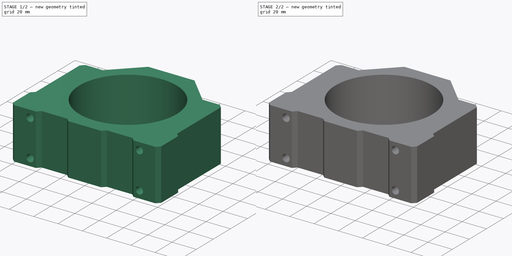
[diagram: build sequence overview — one tinted view per stage of 2, left to right]
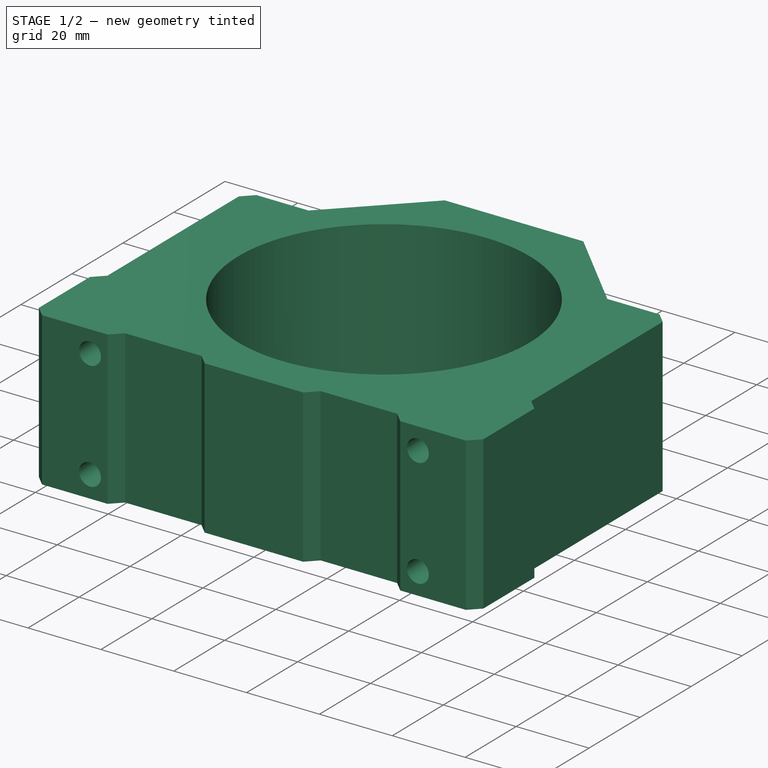
[diagram: stage 1 of 2 — iso view after this stage's code; geometry added in this stage tinted green]
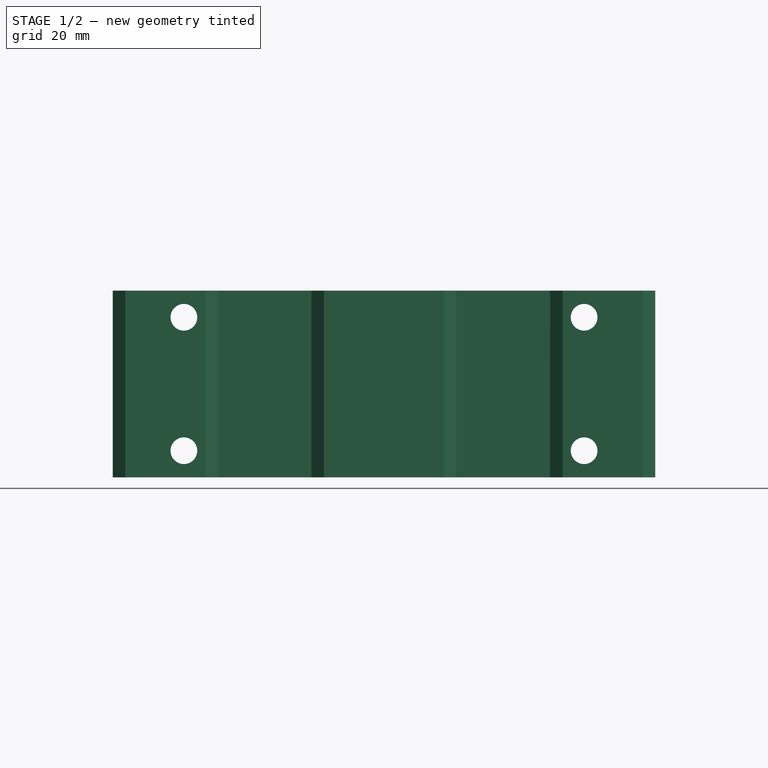
[diagram: stage 1 of 2 — front view after this stage's code; geometry added in this stage tinted green]
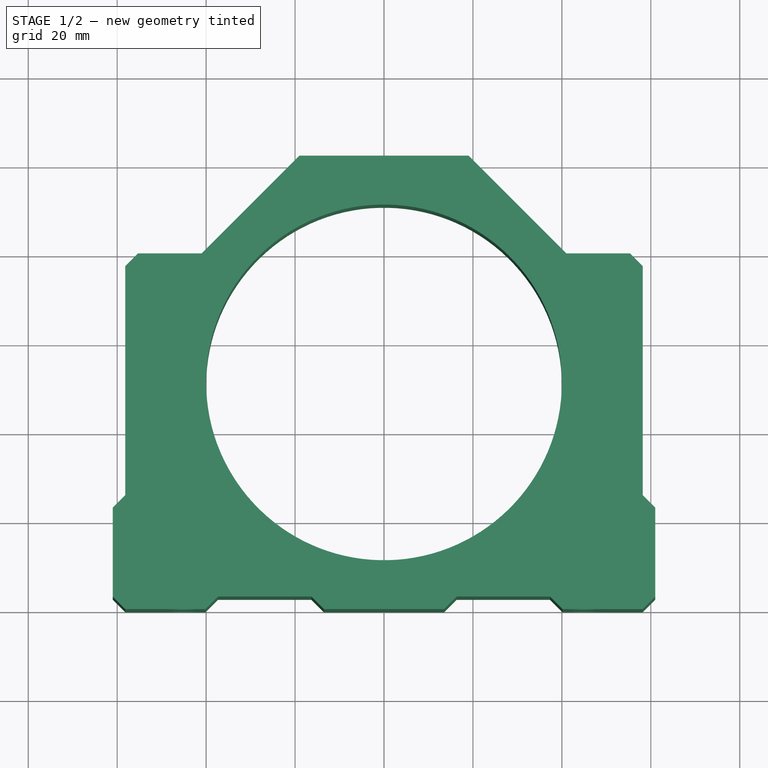
[diagram: stage 1 of 2 — top view after this stage's code; geometry added in this stage tinted green]
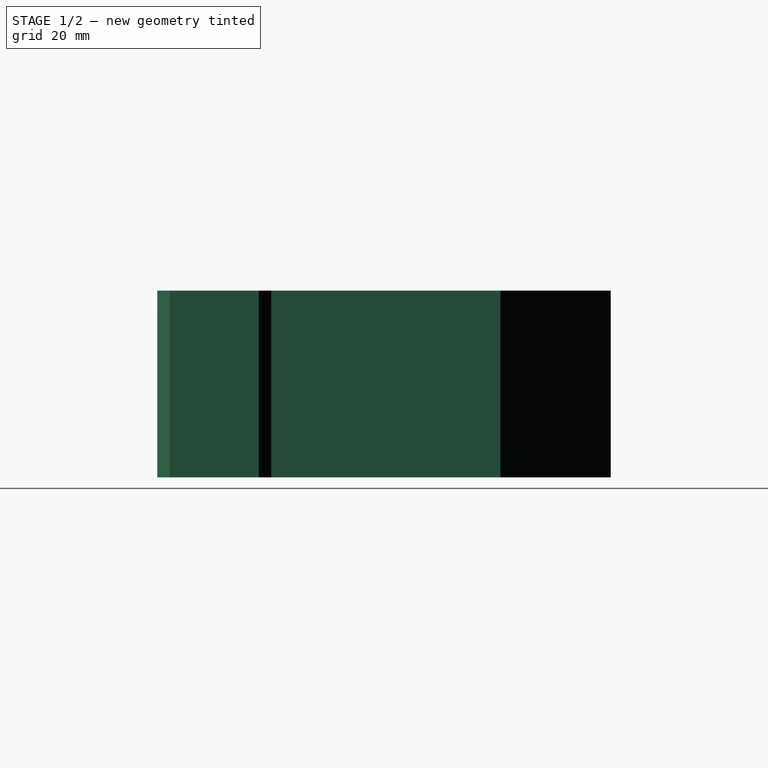
[diagram: stage 1 of 2 — right view after this stage's code; geometry added in this stage tinted green]
FCSTD DOCUMENT  (FreeCAD 1.0R39319 (Git))
Label: 80mm-motor-holder
License: All rights reserved
LicenseURL: http://en.wikipedia.org/wiki/All_rights_reserved
objects: Sketcher::SketchObject×3, PartDesign::Pad×1, PartDesign::Hole×1, PartDesign::Pocket×1, PartDesign::Chamfer×1, PartDesign::Body×1, App::Part×1
note: 19 computed .brp shape members not serialized (recipe doc carries the construction recipe); baked Part::Feature solids carry a one-line shape summary decoded from their .brp

FEATURE [Sketcher::SketchObject] Sketch
  ArcFitTolerance = 1e-06
  AttachmentSupport = -> [XY_Plane]
  FullyConstrained = false
  MakeInternals = false
  MapMode = 5
  sketch-geometry (33):
    g0: LineSegment [constr] StartX=-61 StartY=0 StartZ=0 EndX=61 EndY=0 EndZ=0
    g1: LineSegment [constr] StartX=61 StartY=0 StartZ=0 EndX=61 EndY=102 EndZ=0
    g2: LineSegment [constr] StartX=61 StartY=102 StartZ=0 EndX=-61 EndY=102 EndZ=0
    g3: LineSegment [constr] StartX=-61 StartY=102 StartZ=0 EndX=-61 EndY=0 EndZ=0
    g4: LineSegment StartX=0 StartY=0 StartZ=0 EndX=-13.5147 EndY=0 EndZ=0
    g5: LineSegment StartX=-13.5147 StartY=0 StartZ=0 EndX=-16.3431 EndY=2.82843 EndZ=0
    g6: LineSegment StartX=-16.3431 StartY=2.82843 StartZ=0 EndX=-37.3431 EndY=2.82843 EndZ=0
    g7: LineSegment StartX=-37.3431 StartY=2.82843 StartZ=0 EndX=-40.1716 EndY=0 EndZ=0
    g8: LineSegment StartX=-40.1716 StartY=0 StartZ=0 EndX=-58.1716 EndY=0 EndZ=0
    g9: LineSegment StartX=-58.1716 StartY=0 StartZ=0 EndX=-61 EndY=2.82843 EndZ=0
    g10: LineSegment StartX=-61 StartY=2.82843 StartZ=0 EndX=-61 EndY=22.8284 EndZ=0
    g11: LineSegment StartX=-61 StartY=22.8284 StartZ=0 EndX=-58.1716 EndY=25.6569 EndZ=0
    g12: LineSegment StartX=-58.1716 StartY=25.6569 StartZ=0 EndX=-58.1716 EndY=77.1716 EndZ=0
    g13: LineSegment StartX=-58.1716 StartY=77.1716 StartZ=0 EndX=-55.3431 EndY=80 EndZ=0
    g14: LineSegment StartX=-55.3431 StartY=80 StartZ=0 EndX=-41 EndY=80 EndZ=0
    g15: LineSegment StartX=-41 StartY=80 StartZ=0 EndX=-19 EndY=102 EndZ=0
    g16: LineSegment StartX=-19 StartY=102 StartZ=0 EndX=0 EndY=102 EndZ=0
    g17: LineSegment [constr] StartX=61 StartY=51 StartZ=0 EndX=-61 EndY=51 EndZ=0
    g18: LineSegment [constr] StartX=61 StartY=102 StartZ=0 EndX=61 EndY=0 EndZ=0
    g19: LineSegment StartX=0 StartY=0 StartZ=0 EndX=13.5147 EndY=0 EndZ=0
    g20: LineSegment StartX=13.5147 StartY=0 StartZ=0 EndX=16.3431 EndY=2.82843 EndZ=0
    g21: LineSegment StartX=16.3431 StartY=2.82843 StartZ=0 EndX=37.3431 EndY=2.82843 EndZ=0
    g22: LineSegment StartX=37.3431 StartY=2.82843 StartZ=0 EndX=40.1716 EndY=0 EndZ=0
    g23: LineSegment StartX=40.1716 StartY=0 StartZ=0 EndX=58.1716 EndY=0 EndZ=0
    g24: LineSegment StartX=58.1716 StartY=0 StartZ=0 EndX=61 EndY=2.82843 EndZ=0
    g25: LineSegment StartX=61 StartY=2.82843 StartZ=0 EndX=61 EndY=22.8284 EndZ=0
    g26: LineSegment StartX=61 StartY=22.8284 StartZ=0 EndX=58.1716 EndY=25.6569 EndZ=0
    g27: LineSegment StartX=58.1716 StartY=25.6569 StartZ=0 EndX=58.1716 EndY=77.1716 EndZ=0
    g28: LineSegment StartX=58.1716 StartY=77.1716 StartZ=0 EndX=55.3431 EndY=80 EndZ=0
    g29: LineSegment StartX=55.3431 StartY=80 StartZ=0 EndX=41 EndY=80 EndZ=0
    g30: LineSegment StartX=41 StartY=80 StartZ=0 EndX=19 EndY=102 EndZ=0
    g31: LineSegment StartX=19 StartY=102 StartZ=0 EndX=0 EndY=102 EndZ=0
    g32: Circle CenterX=-2.6e-15 CenterY=51 CenterZ=0 NormalX=0 NormalY=0 NormalZ=1 AngleXU=0 Radius=40
  constraints (82):
    c: Coincident(g0,g1)
    c: Coincident(g1,g2)
    c: Coincident(g2,g3)
    c: Coincident(g3,g0)
    c: Horizontal(g0)
    c: Horizontal(g2)
    c: Vertical(g1)
    c: Vertical(g3)
    c: Distance(g1,g3) = 122
    c: Distance(g0,g2) = 102
    c: Coincident(g4,g-1)
    c: Horizontal(g4)
    c: Coincident(g5,g4)
    c: Coincident(g6,g5)
    c: Horizontal(g6)
    c: Coincident(g6,g7)
    c: PointOnObject(g7,g0)
    c: Coincident(g7,g8)
    c: PointOnObject(g8,g0)
    c: Coincident(g8,g9)
    c: Coincident(g9,g10)
    c: Vertical(g10)
    c: Coincident(g10,g11)
    c: Coincident(g11,g12)
    c: Vertical(g12)
    c: Coincident(g12,g13)
    c: Coincident(g13,g14)
    c: Horizontal(g14)
    c: Coincident(g14,g15)
    c: Coincident(g15,g16)
    c: PointOnObject(g16,g-2)
    c: Horizontal(g16)
    c: Angle(g5,g0) = 0.785398
    c: Angle(g0,g7) = 0.785398
    c: Angle(g9,g0) = 0.785398
    c: Angle(g11,g10) = 0.785398
    c: Angle(g12,g13) = 2.35619
    c: Angle(g15,g14) = 2.35619
    c: PointOnObject(g0,g-1)
    c: PointOnObject(g9,g3)
    c: Distance(g-2,g3) = 61
    c: PointOnObject(g15,g2)
    c: Symmetric(g1,g1,g17)
    c: Symmetric(g3,g3,g17)
    c: DistanceX(g16,g16) = 19
    c: DistanceX(g14,g-1) = 41
    c: Equal(g9,g7)
    c: Distance(g9,g9) = 4
    c: Equal(g9,g11)
    c: Equal(g11,g13)
    c: DistanceX(g8,g8) = 18
    c: DistanceX(g6,g6) = 21
    c: DistanceY(g10,g10) = 20
    c: Vertical(g18)
    c: Horizontal(g19)
    c: Coincident(g20,g19)
    c: Coincident(g21,g20)
    c: Horizontal(g21)
    c: Coincident(g21,g22)
    c: Coincident(g22,g23)
    c: Coincident(g23,g24)
    c: Coincident(g24,g25)
    c: Vertical(g25)
    c: Coincident(g25,g26)
    c: Coincident(g26,g27)
    c: Vertical(g27)
    c: Coincident(g27,g28)
    c: Coincident(g28,g29)
    c: Horizontal(g29)
    c: Coincident(g29,g30)
    c: Coincident(g30,g31)
    c: Horizontal(g31)
    c: Angle(g26,g25) = -0.785398
    c: Angle(g27,g28) = -2.35619
    c: Angle(g30,g29) = -2.35619
    c: PointOnObject(g24,g18)
    c: Equal(g24,g22)
    c: Distance(g24,g24) = 4
    c: Equal(g24,g26)
    c: Equal(g26,g28)
    c: Diameter(g32) = 80
    c: Symmetric(g17,g17,g32)
FEATURE [PartDesign::Pad] Pad
  Direction = (0,0,1)
  Length = 42
  Length2 = 10
  Profile = -> Sketch
  ReferenceAxis = -> Sketch [N_Axis]
  Suppressed = false
  Type = 0
FEATURE [Sketcher::SketchObject] Sketch001
  ArcFitTolerance = 1e-06
  AttachmentSupport = -> [Pad]
  ExternalGeometry = -> [Pad]
  FullyConstrained = true
  MakeInternals = false
  MapMode = 5
  Placement = pos=(0,80,0) rot=(0,0.707107,0.707107;3.14159rad)
  sketch-geometry (4):
    g0: Circle CenterX=-45 CenterY=6 CenterZ=0 NormalX=0 NormalY=0 NormalZ=1 AngleXU=0 Radius=3.35
    g1: Circle CenterX=-45 CenterY=36 CenterZ=0 NormalX=0 NormalY=0 NormalZ=1 AngleXU=0 Radius=3.35
    g2: Circle CenterX=45 CenterY=6 CenterZ=0 NormalX=0 NormalY=0 NormalZ=1 AngleXU=0 Radius=3.35
    g3: Circle CenterX=45 CenterY=36 CenterZ=0 NormalX=0 NormalY=0 NormalZ=1 AngleXU=0 Radius=3.35
  constraints (12):
    c: Diameter(g0) = 6.7
    c: Diameter(g1) = 6.7
    c: Vertical(g0,g1)
    c: Distance(g1,g-2) = 45
    c: DistanceY(g0,g1) = 30
    c: DistanceY(g1,g-3) = 6
    c: Diameter(g2) = 6.7
    c: Diameter(g3) = 6.7
    c: DistanceX(g1,g3) = 90
    c: Horizontal(g0,g2)
    c: Horizontal(g1,g3)
    c: Vertical(g2,g3)
FEATURE [PartDesign::Hole] Hole
  BaseFeature = -> Pad
  CustomThreadClearance = 0
  Depth = 332.239
  DepthType = 1
  Diameter = 6
  DrillForDepth = false
  DrillPoint = 1
  DrillPointAngle = 118
  HoleCutCountersinkAngle = 90
  HoleCutCustomValues = false
  HoleCutDepth = 0
  HoleCutDiameter = 6.1
  HoleCutType = 0
  ModelThread = false
  Profile = -> Sketch001
  Suppressed = false
  Tapered = false
  TaperedAngle = 90
  ThreadClass = 0
  ThreadDepth = 332.239
  ThreadDepthType = 0
  ThreadDirection = 0
  ThreadFit = 0
  ThreadSize = 0
  ThreadType = 0
  Threaded = false
  UseCustomThreadClearance = false
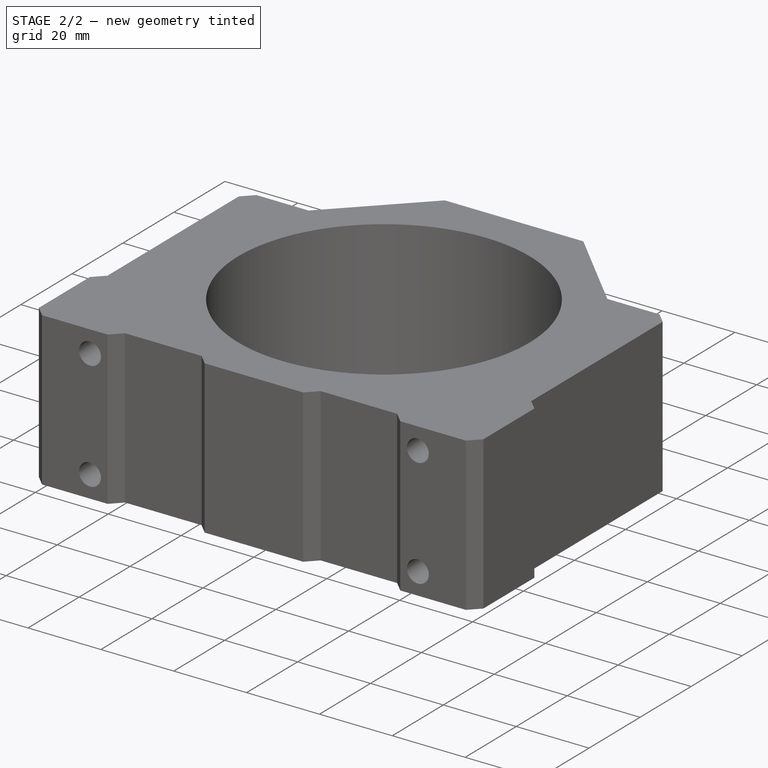
[diagram: stage 2 of 2 — iso view after this stage's code; geometry added in this stage tinted green]
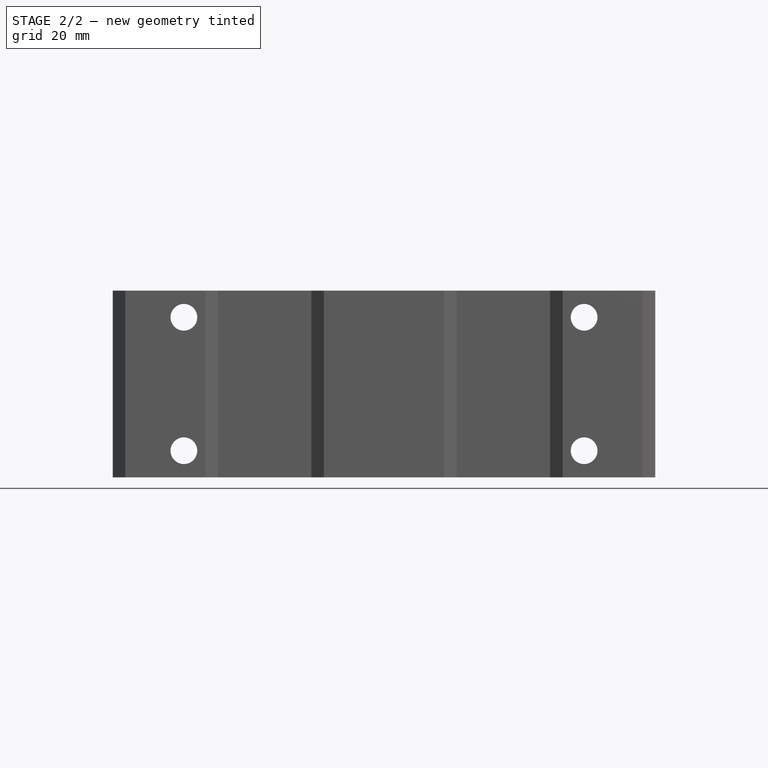
[diagram: stage 2 of 2 — front view after this stage's code; geometry added in this stage tinted green]
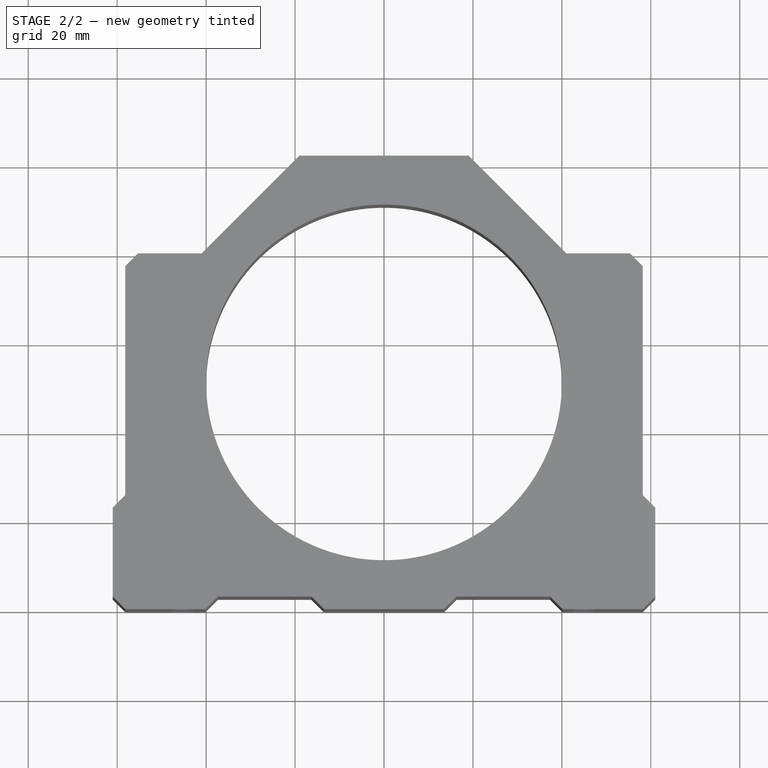
[diagram: stage 2 of 2 — top view after this stage's code; geometry added in this stage tinted green]
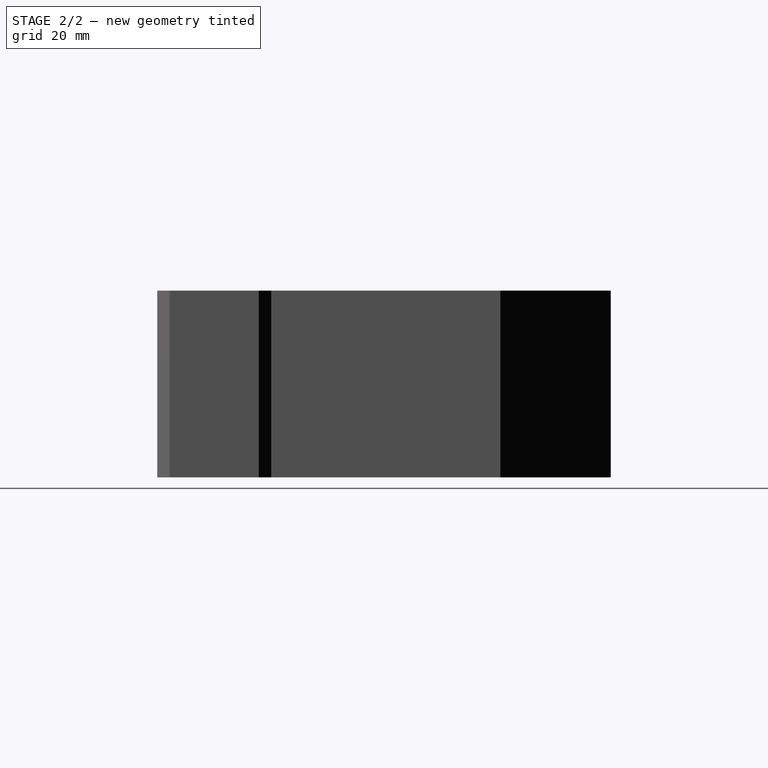
[diagram: stage 2 of 2 — right view after this stage's code; geometry added in this stage tinted green]
FEATURE [Sketcher::SketchObject] Sketch002
  ArcFitTolerance = 1e-06
  AttachmentSupport = -> [Hole]
  ExternalGeometry = -> [Hole]
  FullyConstrained = false
  MakeInternals = false
  MapMode = 5
  Placement = pos=(0,0,0) rot=(1,0,0;3.14159rad)
  sketch-geometry (4):
    g0: LineSegment StartX=61.5784 StartY=-54 StartZ=0 EndX=61.5784 EndY=-52 EndZ=0
    g1: LineSegment StartX=61.5784 StartY=-52 StartZ=0 EndX=31.2793 EndY=-52 EndZ=0
    g2: LineSegment StartX=31.2793 StartY=-52 StartZ=0 EndX=31.2793 EndY=-54 EndZ=0
    g3: LineSegment StartX=31.2793 StartY=-54 StartZ=0 EndX=61.5784 EndY=-54 EndZ=0
  constraints (10):
    c: Coincident(g0,g1)
    c: Coincident(g1,g2)
    c: Coincident(g2,g3)
    c: Coincident(g3,g0)
    c: Vertical(g0)
    c: Vertical(g2)
    c: Horizontal(g1)
    c: Horizontal(g3)
    c: Distance(g3,g1) = 2
    c: Distance(g-3,g3) = 26
FEATURE [PartDesign::Pocket] Pocket
  BaseFeature = -> Hole
  Direction = (0,0,1)
  Length = 5
  Length2 = 5
  Profile = -> Sketch002
  ReferenceAxis = -> Sketch002 [N_Axis]
  Suppressed = false
  Type = 2
FEATURE [PartDesign::Chamfer] Chamfer
  Angle = 45
  Base = -> Hole [Edge78,Edge79,Edge71,Edge72]
  BaseFeature = -> Hole
  ChamferType = 0
  FlipDirection = false
  Size = 0.5
  Size2 = 1
  SupportTransform = false
  Suppressed = false
  UseAllEdges = false
FEATURE [PartDesign::Body] Body
  AllowCompound = false
  Group = -> [Sketch,Pad,Sketch001,Hole,Sketch002,Pocket,Chamfer]
  Origin = -> Origin
  Tip = -> Chamfer
FEATURE [App::Part] Part  label="80mm-motor-holder"
  Group = -> [Body]
  Origin = -> Origin001
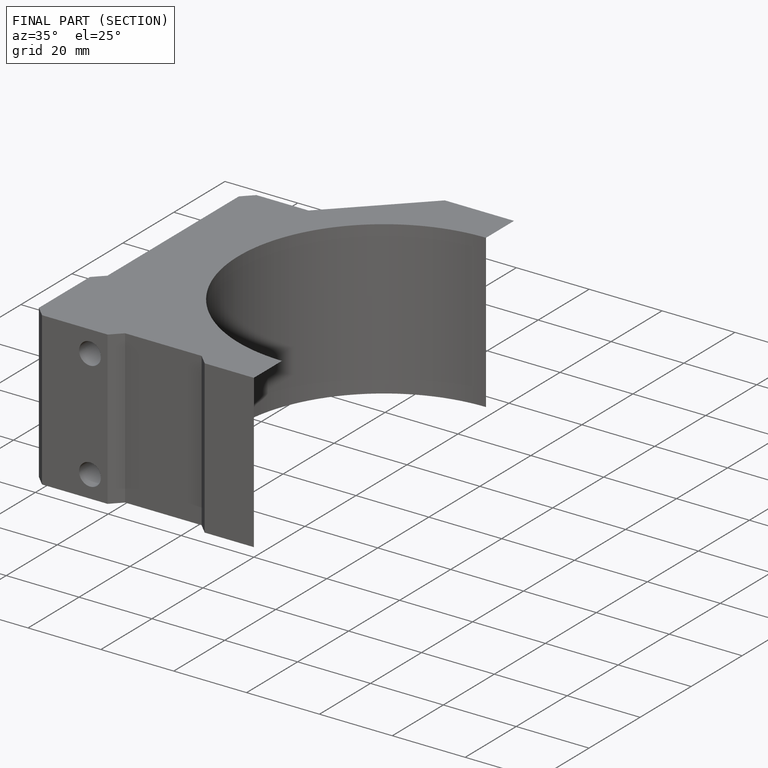
[diagram: finished part — half-section view (interior)]
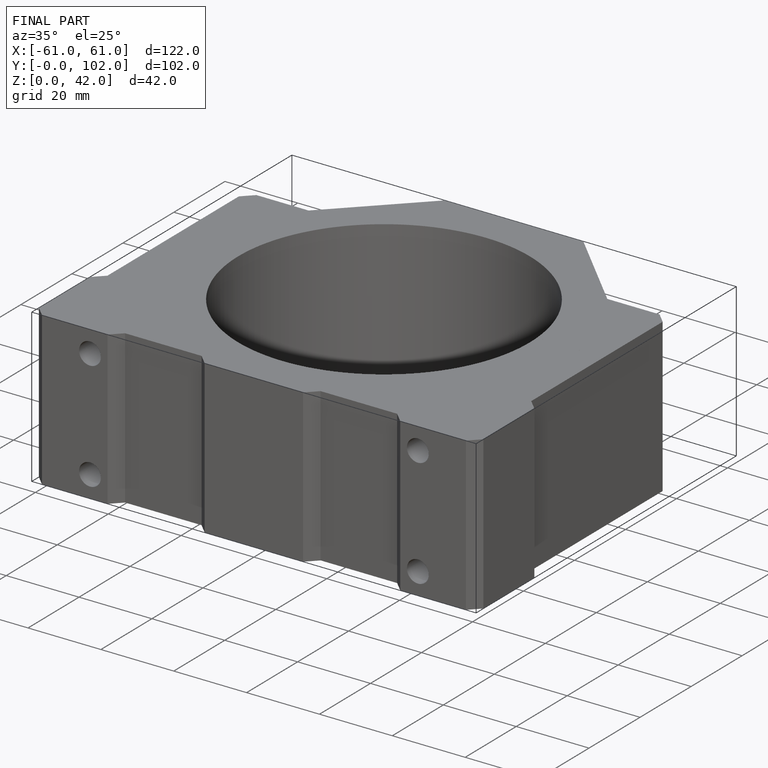
[diagram: finished part — iso view with bounding-box wireframe]
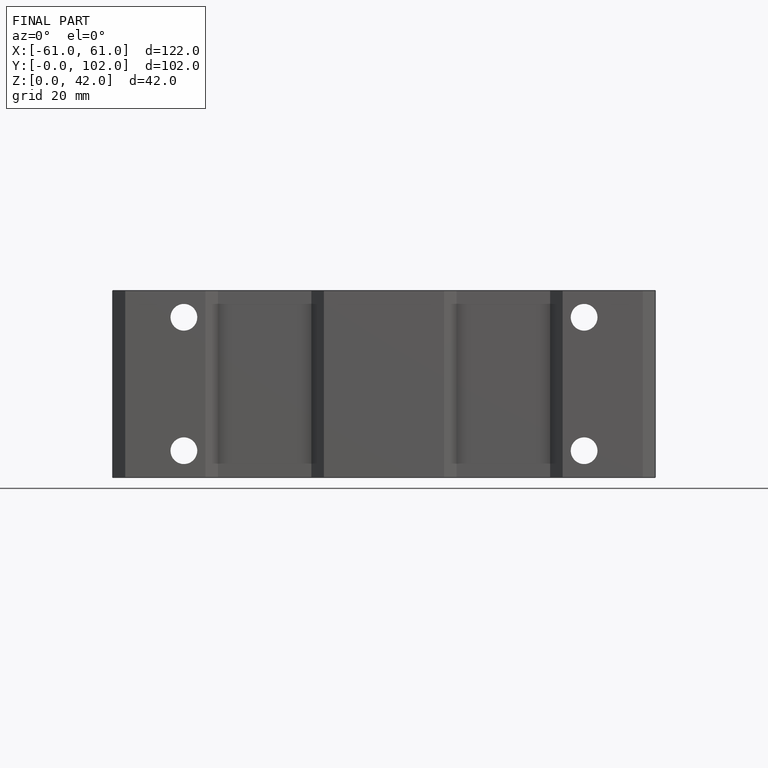
[diagram: finished part — front view with bounding-box wireframe]
